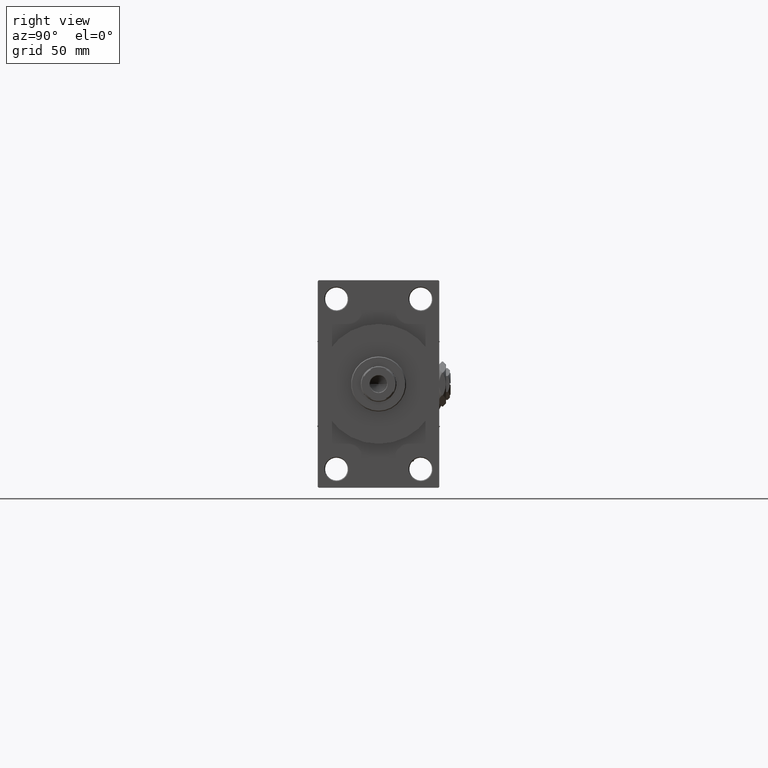
[diagram: clean part render]
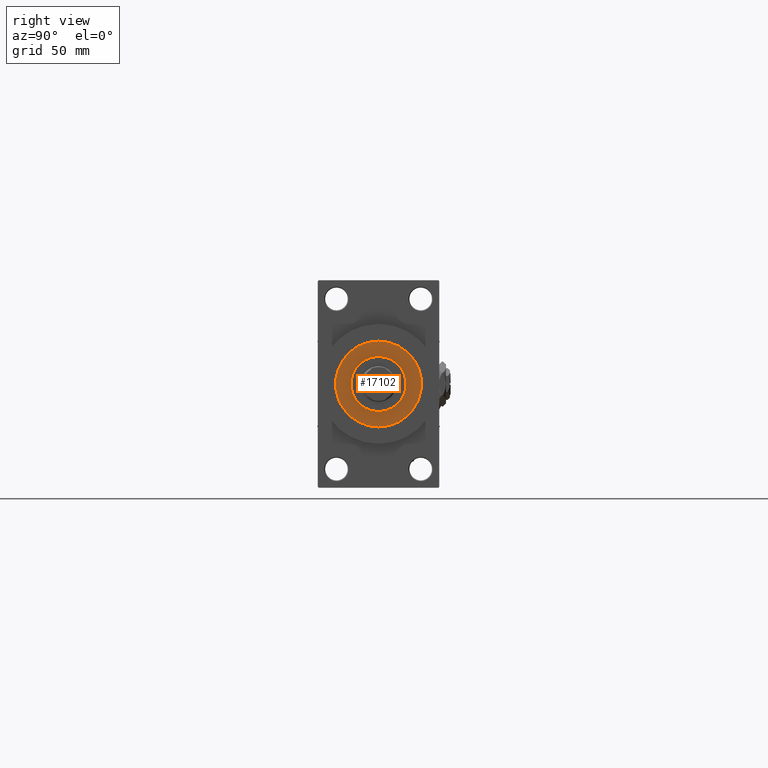
[diagram: same view with one face highlighted and labeled with its STEP entity id]
A machine part, right view. The second image highlights one B-rep face of the part: STEP entity #17102.
In plain terms, the highlighted planar face has unit normal (1, -0, -0).
Its self-contained STEP definition (entity closure, byte-faithful):
#2643 = CIRCLE ( 'NONE', #31083, 17.00000000000000000 ) ;
#3253 = CARTESIAN_POINT ( 'NONE',  ( 0.000000000000000000, 0.000000000000000000, 43.25999999999999801 ) ) ;
#5421 = CARTESIAN_POINT ( 'NONE',  ( 0.000000000000000000, 0.000000000000000000, 43.25999999999999801 ) ) ;
#6837 = ORIENTED_EDGE ( 'NONE', *, *, #18496, .T. ) ;
#7870 = ORIENTED_EDGE ( 'NONE', *, *, #49068, .F. ) ;
#11343 = AXIS2_PLACEMENT_3D ( 'NONE', #16958, #17210, #28661 ) ;
#12420 = CARTESIAN_POINT ( 'NONE',  ( 0.000000000000000000, 0.000000000000000000, 43.25999999999999801 ) ) ;
#12719 = VERTEX_POINT ( 'NONE', #37923 ) ;
#13155 = CIRCLE ( 'NONE', #23722, 26.50000000000000355 ) ;
#13444 = EDGE_CURVE ( 'NONE', #16014, #12719, #42362, .T. ) ;
#16014 = VERTEX_POINT ( 'NONE', #39381 ) ;
#16065 = EDGE_CURVE ( 'NONE', #40151, #44654, #2643, .T. ) ;
#16745 = DIRECTION ( 'NONE',  ( 1.000000000000000000, 0.000000000000000000, 0.000000000000000000 ) ) ;
#16958 = CARTESIAN_POINT ( 'NONE',  ( 0.000000000000000000, 0.000000000000000000, 43.25999999999999801 ) ) ;
#17102 = ADVANCED_FACE ( 'NONE', ( #46982, #26903 ), #31233, .T. ) ;
#17210 = DIRECTION ( 'NONE',  ( 0.000000000000000000, 0.000000000000000000, 1.000000000000000000 ) ) ;
#18272 = CARTESIAN_POINT ( 'NONE',  ( -17.00000000000000000, 0.000000000000000000, 43.25999999999999801 ) ) ;
#18496 = EDGE_CURVE ( 'NONE', #12719, #16014, #13155, .T. ) ;
#19010 = DIRECTION ( 'NONE',  ( 1.000000000000000000, 0.000000000000000000, -0.000000000000000000 ) ) ;
#19519 = DIRECTION ( 'NONE',  ( 0.000000000000000000, 0.000000000000000000, 1.000000000000000000 ) ) ;
#20214 = DIRECTION ( 'NONE',  ( 0.000000000000000000, 0.000000000000000000, 1.000000000000000000 ) ) ;
#20811 = DIRECTION ( 'NONE',  ( 0.000000000000000000, 0.000000000000000000, 1.000000000000000000 ) ) ;
#20919 = DIRECTION ( 'NONE',  ( 0.000000000000000000, 0.000000000000000000, 1.000000000000000000 ) ) ;
#23722 = AXIS2_PLACEMENT_3D ( 'NONE', #27844, #20214, #43358 ) ;
#26015 = CARTESIAN_POINT ( 'NONE',  ( 17.00000000000000000, 2.081899558550500280E-15, 43.25999999999999801 ) ) ;
#26903 = FACE_OUTER_BOUND ( 'NONE', #47317, .T. ) ;
#27844 = CARTESIAN_POINT ( 'NONE',  ( 0.000000000000000000, 0.000000000000000000, 43.25999999999999801 ) ) ;
#28661 = DIRECTION ( 'NONE',  ( 1.000000000000000000, 0.000000000000000000, 0.000000000000000000 ) ) ;
#31083 = AXIS2_PLACEMENT_3D ( 'NONE', #12420, #20811, #16745 ) ;
#31233 = PLANE ( 'NONE',  #41665 ) ;
#33146 = ORIENTED_EDGE ( 'NONE', *, *, #16065, .F. ) ;
#33290 = CIRCLE ( 'NONE', #11343, 17.00000000000000000 ) ;
#35015 = DIRECTION ( 'NONE',  ( 1.000000000000000000, 0.000000000000000000, 0.000000000000000000 ) ) ;
#37923 = CARTESIAN_POINT ( 'NONE',  ( 26.50000000000000355, 3.245314017740486554E-15, 43.25999999999999801 ) ) ;
#39092 = AXIS2_PLACEMENT_3D ( 'NONE', #5421, #20919, #35015 ) ;
#39381 = CARTESIAN_POINT ( 'NONE',  ( -26.50000000000000355, 0.000000000000000000, 43.25999999999999801 ) ) ;
#40151 = VERTEX_POINT ( 'NONE', #18272 ) ;
#41665 = AXIS2_PLACEMENT_3D ( 'NONE', #3253, #19519, #19010 ) ;
#42362 = CIRCLE ( 'NONE', #39092, 26.50000000000000355 ) ;
#43358 = DIRECTION ( 'NONE',  ( 1.000000000000000000, 0.000000000000000000, 0.000000000000000000 ) ) ;
#43769 = ORIENTED_EDGE ( 'NONE', *, *, #13444, .T. ) ;
#43909 = EDGE_LOOP ( 'NONE', ( #33146, #7870 ) ) ;
#44654 = VERTEX_POINT ( 'NONE', #26015 ) ;
#46982 = FACE_BOUND ( 'NONE', #43909, .T. ) ;
#47317 = EDGE_LOOP ( 'NONE', ( #43769, #6837 ) ) ;
#49068 = EDGE_CURVE ( 'NONE', #44654, #40151, #33290, .T. ) ;